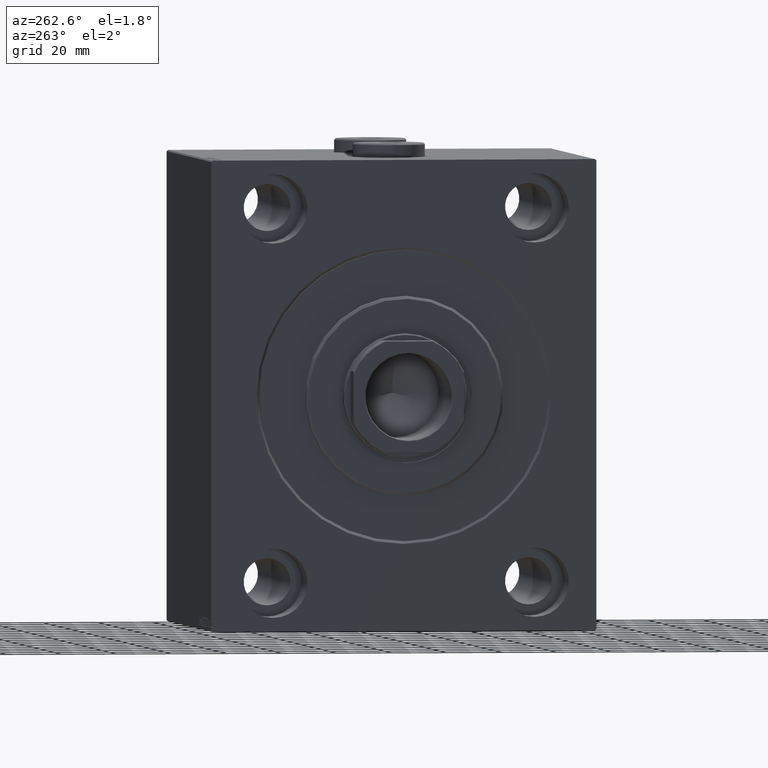
[diagram: clean part render]
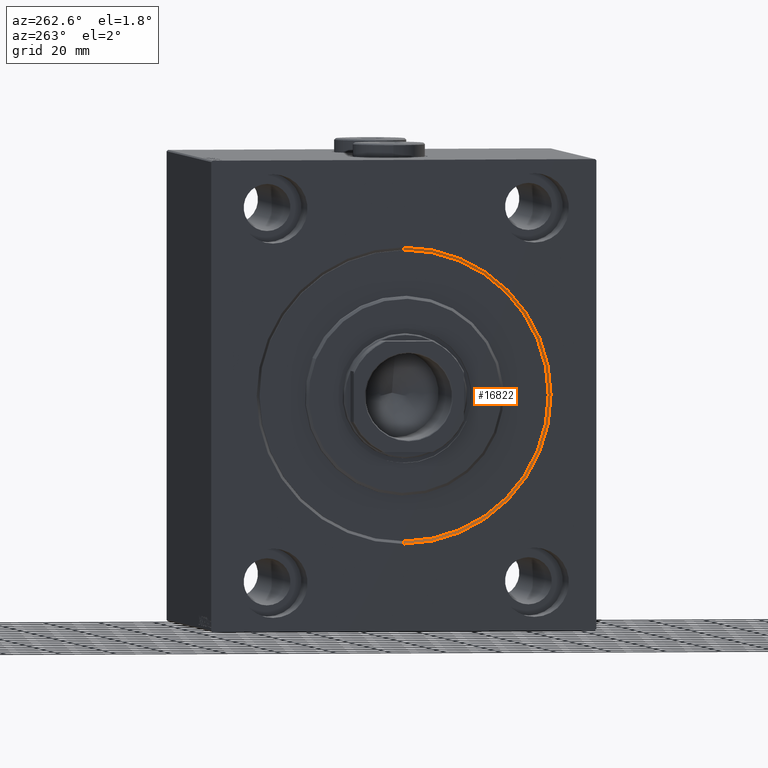
[diagram: same view with one face highlighted and labeled with its STEP entity id]
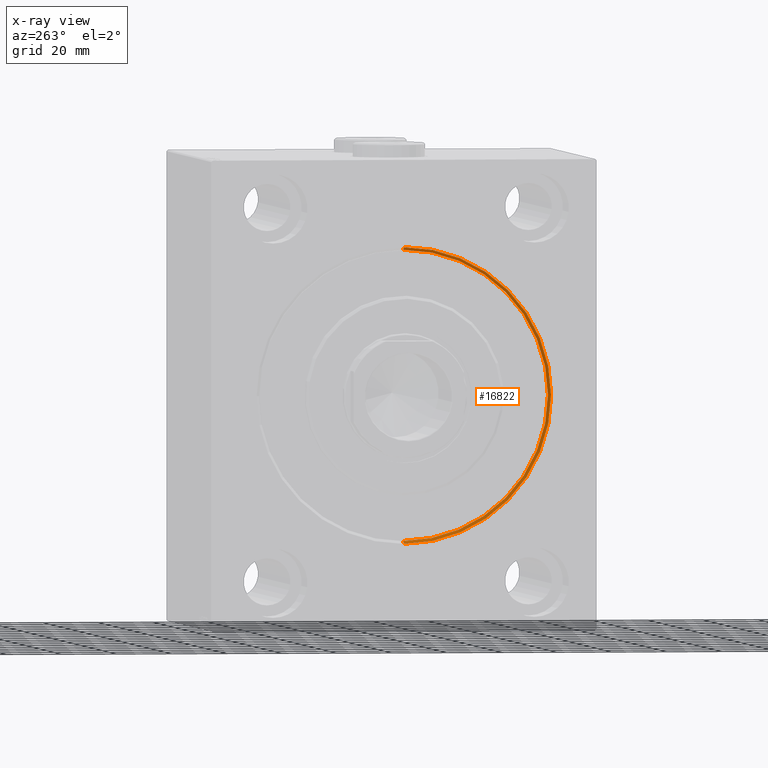
[diagram: x-ray of the same camera — body ghosted, the highlighted face saturated]
A machine part, auxiliary view. The second image highlights one B-rep face of the part: STEP entity #16822.
The next image is the same camera in x-ray: the body ghosted, the highlighted face saturated — about 0% of this face is hidden behind the body in this view.
In plain terms, the highlighted conical surface has half-angle 45 deg.
Its self-contained STEP definition (entity closure, byte-faithful):
#729 = AXIS2_PLACEMENT_3D ( 'NONE', #23857, #27703, #24746 ) ;
#1255 = EDGE_CURVE ( 'NONE', #19140, #28648, #17501, .T. ) ;
#1952 = CARTESIAN_POINT ( 'NONE',  ( 0.000000000000000000, 0.000000000000000000, 0.000000000000000000 ) ) ;
#3556 = CARTESIAN_POINT ( 'NONE',  ( 1.000000000000021760, 0.000000000000000000, 0.000000000000000000 ) ) ;
#4004 = DIRECTION ( 'NONE',  ( -1.000000000000000000, 0.000000000000000000, 0.000000000000000000 ) ) ;
#4223 = CARTESIAN_POINT ( 'NONE',  ( 0.000000000000000000, 6.551860375438343048E-15, -53.50000000000002842 ) ) ;
#4844 = EDGE_CURVE ( 'NONE', #25009, #16093, #40902, .T. ) ;
#6088 = DIRECTION ( 'NONE',  ( -0.7071067811865425767, 0.000000000000000000, 0.7071067811865525687 ) ) ;
#8786 = ORIENTED_EDGE ( 'NONE', *, *, #1255, .F. ) ;
#8857 = AXIS2_PLACEMENT_3D ( 'NONE', #1952, #12469, #16106 ) ;
#9786 = CARTESIAN_POINT ( 'NONE',  ( 1.000000000000021760, 0.000000000000000000, 52.49999999999999289 ) ) ;
#10409 = FACE_OUTER_BOUND ( 'NONE', #39278, .T. ) ;
#12469 = DIRECTION ( 'NONE',  ( 1.000000000000000000, 0.000000000000000000, 0.000000000000000000 ) ) ;
#14077 = ORIENTED_EDGE ( 'NONE', *, *, #4844, .F. ) ;
#16093 = VERTEX_POINT ( 'NONE', #4223 ) ;
#16106 = DIRECTION ( 'NONE',  ( 0.000000000000000000, 0.000000000000000000, -1.000000000000000000 ) ) ;
#16822 = ADVANCED_FACE ( 'NONE', ( #10409 ), #23988, .F. ) ;
#17191 = VECTOR ( 'NONE', #25747, 999.9999999999998863 ) ;
#17501 = CIRCLE ( 'NONE', #729, 52.49999999999999289 ) ;
#19140 = VERTEX_POINT ( 'NONE', #38847 ) ;
#20007 = CARTESIAN_POINT ( 'NONE',  ( 0.000000000000000000, 0.000000000000000000, 53.50000000000002842 ) ) ;
#21560 = ORIENTED_EDGE ( 'NONE', *, *, #35873, .F. ) ;
#22447 = ORIENTED_EDGE ( 'NONE', *, *, #34477, .T. ) ;
#22755 = CARTESIAN_POINT ( 'NONE',  ( 1.000000000000021760, 0.000000000000000000, 52.49999999999999289 ) ) ;
#23857 = CARTESIAN_POINT ( 'NONE',  ( 1.000000000000021760, 0.000000000000000000, 0.000000000000000000 ) ) ;
#23988 = CONICAL_SURFACE ( 'NONE', #34923, 52.49999999999999289, 0.7853981633974552734 ) ;
#24746 = DIRECTION ( 'NONE',  ( 0.000000000000000000, 0.000000000000000000, -1.000000000000000000 ) ) ;
#25009 = VERTEX_POINT ( 'NONE', #20007 ) ;
#25747 = DIRECTION ( 'NONE',  ( -0.7071067811865425767, 8.659560562354994488E-17, -0.7071067811865525687 ) ) ;
#27703 = DIRECTION ( 'NONE',  ( -1.000000000000000000, 0.000000000000000000, 0.000000000000000000 ) ) ;
#28648 = VERTEX_POINT ( 'NONE', #9786 ) ;
#28946 = LINE ( 'NONE', #38991, #17191 ) ;
#31398 = DIRECTION ( 'NONE',  ( 0.000000000000000000, 0.000000000000000000, 1.000000000000000000 ) ) ;
#33471 = LINE ( 'NONE', #22755, #38349 ) ;
#34477 = EDGE_CURVE ( 'NONE', #19140, #16093, #28946, .T. ) ;
#34923 = AXIS2_PLACEMENT_3D ( 'NONE', #3556, #4004, #31398 ) ;
#35873 = EDGE_CURVE ( 'NONE', #28648, #25009, #33471, .T. ) ;
#38349 = VECTOR ( 'NONE', #6088, 999.9999999999998863 ) ;
#38847 = CARTESIAN_POINT ( 'NONE',  ( 1.000000000000021760, 6.429395695523603167E-15, -52.49999999999999289 ) ) ;
#38991 = CARTESIAN_POINT ( 'NONE',  ( 1.000000000000021760, 6.429395695523603167E-15, -52.49999999999999289 ) ) ;
#39278 = EDGE_LOOP ( 'NONE', ( #8786, #22447, #14077, #21560 ) ) ;
#40902 = CIRCLE ( 'NONE', #8857, 53.50000000000002842 ) ;